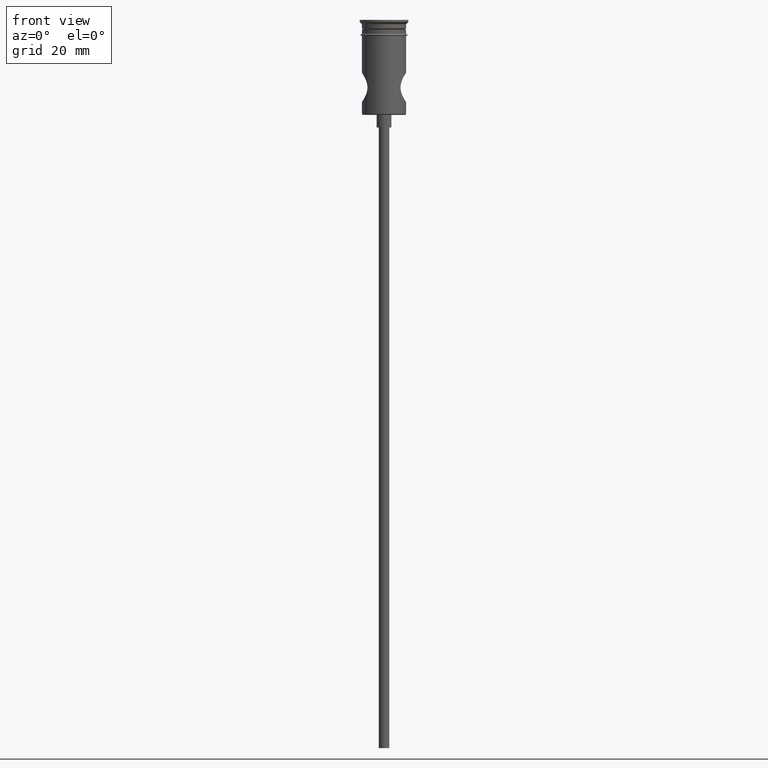
[diagram: clean part render]
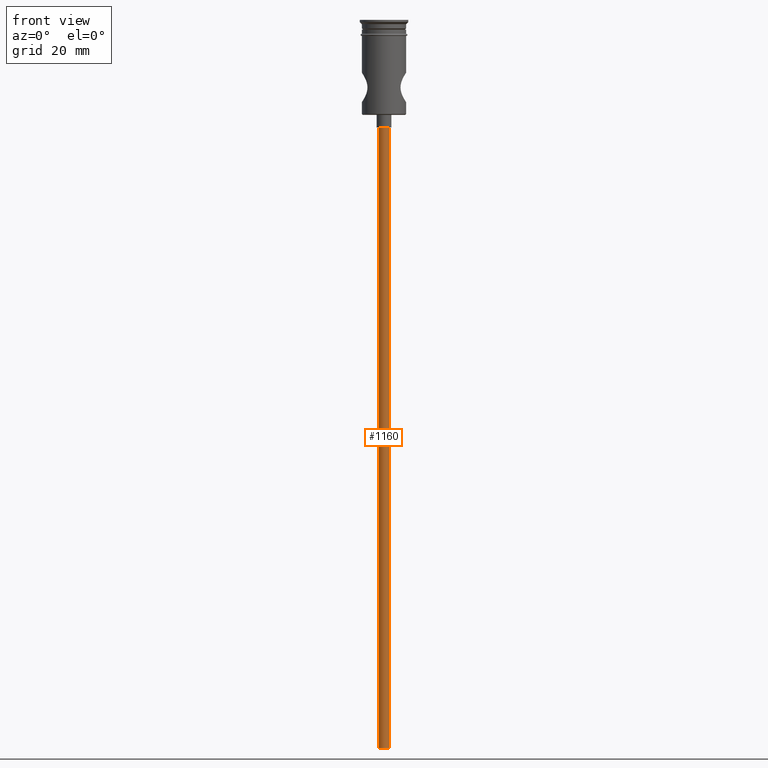
[diagram: same view with one face highlighted and labeled with its STEP entity id]
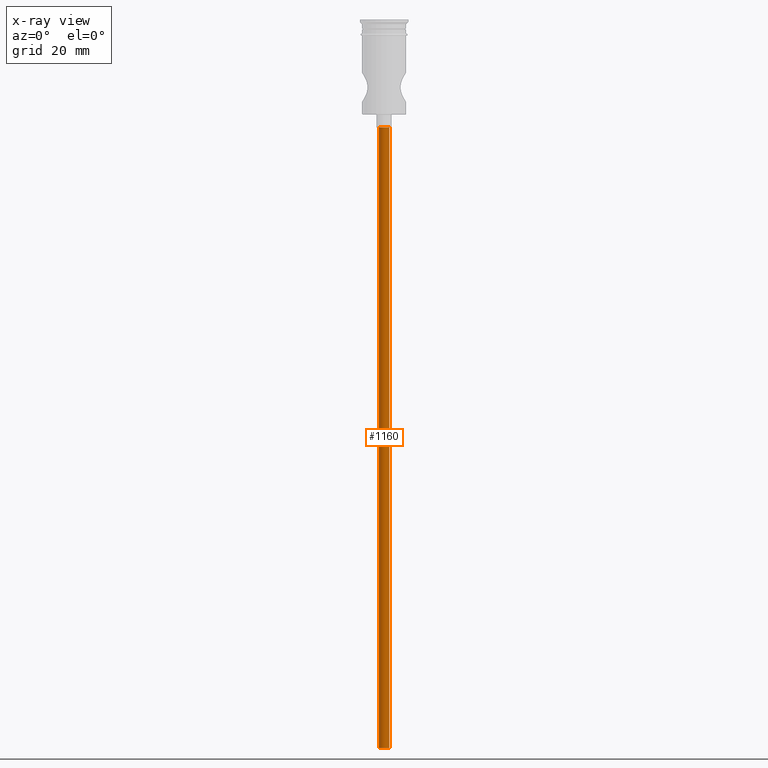
[diagram: x-ray of the same camera — body ghosted, the highlighted face saturated]
A machine part, front view. The second image highlights one B-rep face of the part: STEP entity #1160.
The next image is the same camera in x-ray: the body ghosted, the highlighted face saturated — about 0% of this face is hidden behind the body in this view.
In plain terms, the highlighted cylindrical surface (edge-blend (fillet) strip) has radius 1.25 mm, axis along (-0, -0, 1).
Its self-contained STEP definition (entity closure, byte-faithful):
#46 = CARTESIAN_POINT ( 'NONE',  ( 1.250000000000000000, 0.000000000000000000, -172.5000000000000000 ) ) ;
#67 = ORIENTED_EDGE ( 'NONE', *, *, #597, .F. ) ;
#77 = LINE ( 'NONE', #300, #545 ) ;
#141 = CYLINDRICAL_SURFACE ( 'NONE', #158, 1.250000000000000000 ) ;
#158 = AXIS2_PLACEMENT_3D ( 'NONE', #947, #726, #1166 ) ;
#187 = DIRECTION ( 'NONE',  ( -0.000000000000000000, -0.000000000000000000, 1.000000000000000000 ) ) ;
#200 = VERTEX_POINT ( 'NONE', #883 ) ;
#229 = AXIS2_PLACEMENT_3D ( 'NONE', #1029, #1141, #365 ) ;
#300 = CARTESIAN_POINT ( 'NONE',  ( 1.250000000000000000, 0.000000000000000000, -172.5000000000000000 ) ) ;
#353 = CIRCLE ( 'NONE', #610, 1.250000000000000000 ) ;
#365 = DIRECTION ( 'NONE',  ( -1.000000000000000000, 0.000000000000000000, 0.000000000000000000 ) ) ;
#403 = CARTESIAN_POINT ( 'NONE',  ( 1.250000000000000000, 0.000000000000000000, -25.50000000000000000 ) ) ;
#466 = CARTESIAN_POINT ( 'NONE',  ( -1.250000000000000000, 1.530808498934191571E-16, -25.50000000000000000 ) ) ;
#486 = ORIENTED_EDGE ( 'NONE', *, *, #989, .T. ) ;
#496 = FACE_OUTER_BOUND ( 'NONE', #1248, .T. ) ;
#502 = VECTOR ( 'NONE', #756, 1000.000000000000000 ) ;
#532 = LINE ( 'NONE', #1332, #502 ) ;
#545 = VECTOR ( 'NONE', #187, 1000.000000000000000 ) ;
#597 = EDGE_CURVE ( 'NONE', #200, #1384, #532, .T. ) ;
#610 = AXIS2_PLACEMENT_3D ( 'NONE', #907, #1125, #1257 ) ;
#644 = ORIENTED_EDGE ( 'NONE', *, *, #1396, .F. ) ;
#726 = DIRECTION ( 'NONE',  ( -0.000000000000000000, -0.000000000000000000, 1.000000000000000000 ) ) ;
#748 = VERTEX_POINT ( 'NONE', #46 ) ;
#756 = DIRECTION ( 'NONE',  ( -0.000000000000000000, -0.000000000000000000, 1.000000000000000000 ) ) ;
#875 = CIRCLE ( 'NONE', #229, 1.250000000000000000 ) ;
#883 = CARTESIAN_POINT ( 'NONE',  ( -1.250000000000000000, 1.530808498934191571E-16, -172.5000000000000000 ) ) ;
#907 = CARTESIAN_POINT ( 'NONE',  ( 0.000000000000000000, 0.000000000000000000, -172.5000000000000000 ) ) ;
#947 = CARTESIAN_POINT ( 'NONE',  ( 0.000000000000000000, 0.000000000000000000, -172.5000000000000000 ) ) ;
#989 = EDGE_CURVE ( 'NONE', #748, #1239, #77, .T. ) ;
#1029 = CARTESIAN_POINT ( 'NONE',  ( 0.000000000000000000, 0.000000000000000000, -25.50000000000000000 ) ) ;
#1045 = EDGE_CURVE ( 'NONE', #1239, #1384, #875, .T. ) ;
#1125 = DIRECTION ( 'NONE',  ( 0.000000000000000000, 0.000000000000000000, -1.000000000000000000 ) ) ;
#1141 = DIRECTION ( 'NONE',  ( 0.000000000000000000, 0.000000000000000000, -1.000000000000000000 ) ) ;
#1160 = ADVANCED_FACE ( 'NONE', ( #496 ), #141, .T. ) ;
#1166 = DIRECTION ( 'NONE',  ( 1.000000000000000000, 0.000000000000000000, 0.000000000000000000 ) ) ;
#1239 = VERTEX_POINT ( 'NONE', #403 ) ;
#1248 = EDGE_LOOP ( 'NONE', ( #67, #644, #486, #1268 ) ) ;
#1257 = DIRECTION ( 'NONE',  ( -1.000000000000000000, 0.000000000000000000, 0.000000000000000000 ) ) ;
#1268 = ORIENTED_EDGE ( 'NONE', *, *, #1045, .T. ) ;
#1332 = CARTESIAN_POINT ( 'NONE',  ( -1.250000000000000000, 1.530808498934191571E-16, -172.5000000000000000 ) ) ;
#1384 = VERTEX_POINT ( 'NONE', #466 ) ;
#1396 = EDGE_CURVE ( 'NONE', #748, #200, #353, .T. ) ;